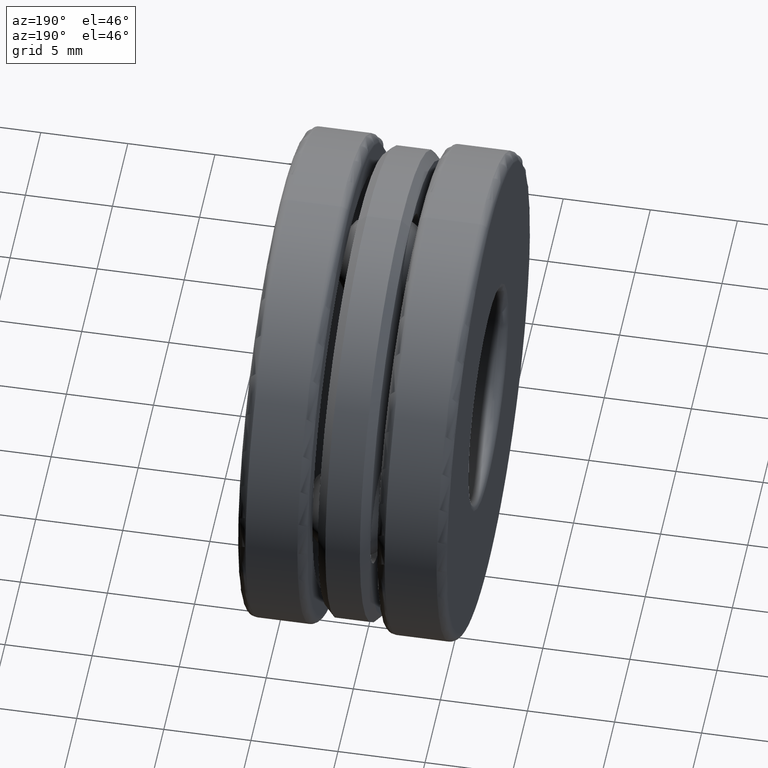
[diagram: clean part render]
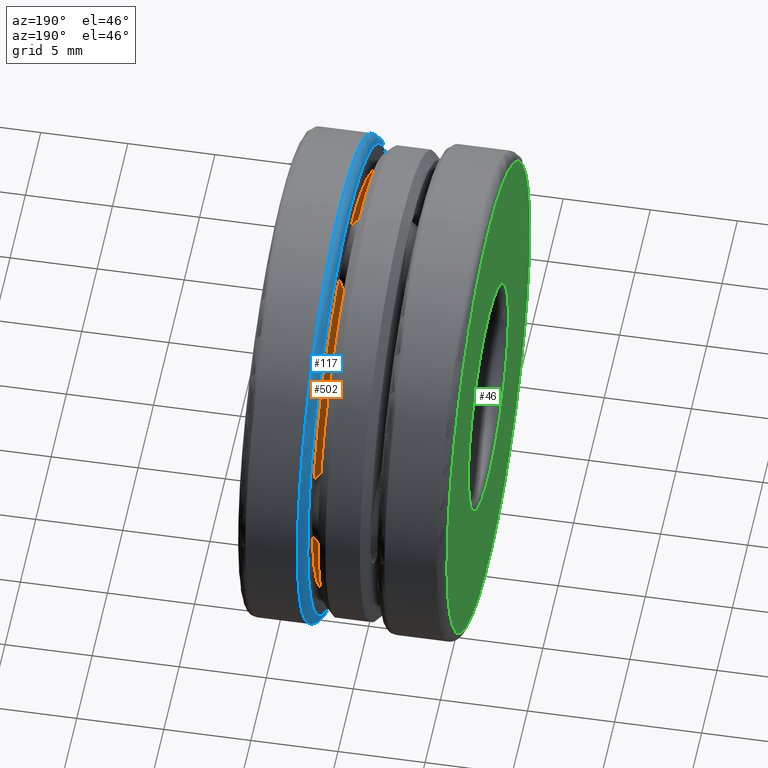
[diagram: same view with three faces highlighted in distinct colors, each labeled with its STEP entity id]
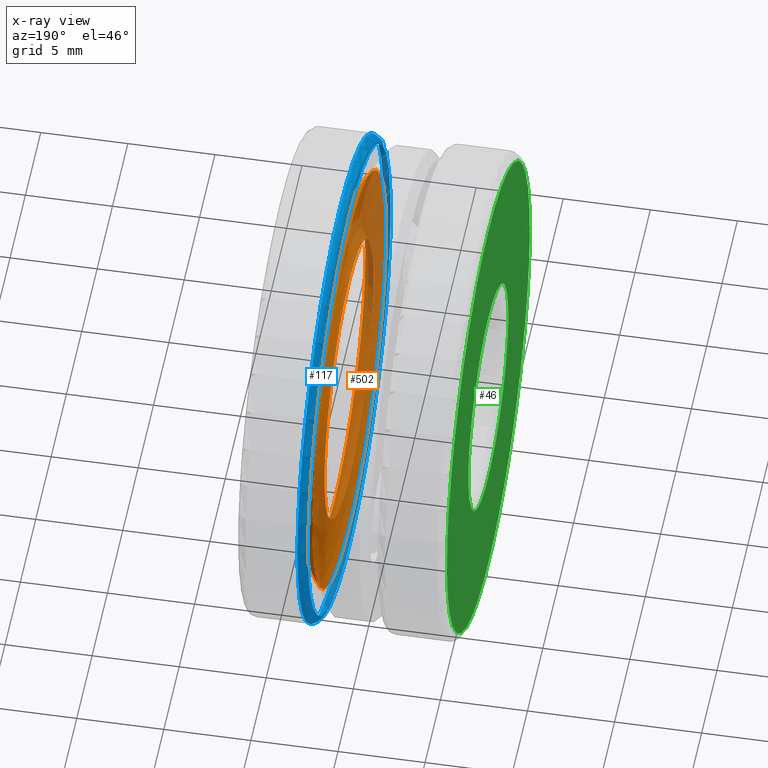
[diagram: x-ray of the same camera — body ghosted, the three highlighted faces saturated]
A machine part, auxiliary view with three faces highlighted in distinct colors.
The next image is the same camera in x-ray (body ghosted, the three faces saturated) — at least one of them is partly hidden behind the body in this view.
Their STEP definitions:

[orange] entity #502 — the highlighted toroidal blend (fillet) surface has major radius 9.9977 mm and minor (blend) radius 2.8067 mm.
#80 = AXIS2_PLACEMENT_3D ( 'NONE', #89, #794, #224 ) ;
#89 = CARTESIAN_POINT ( 'NONE',  ( 0.07866824000000058300, 0.0000000000000000000, 0.0000000000000000000 ) ) ;
#131 = TOROIDAL_SURFACE ( 'NONE', #632, 0.3936102362204725300, 0.1105000000000000000 ) ;
#193 = FACE_OUTER_BOUND ( 'NONE', #715, .T. ) ;
#224 = DIRECTION ( 'NONE',  ( 0.0000000000000000000, 0.0000000000000000000, 1.000000000000000000 ) ) ;
#256 = DIRECTION ( 'NONE',  ( -1.000000000000000000, -0.0000000000000000000, -0.0000000000000000000 ) ) ;
#281 = AXIS2_PLACEMENT_3D ( 'NONE', #322, #256, #332 ) ;
#322 = CARTESIAN_POINT ( 'NONE',  ( 0.07866824000000058300, 0.0000000000000000000, 0.0000000000000000000 ) ) ;
#327 = EDGE_CURVE ( 'NONE', #515, #515, #501, .T. ) ;
#332 = DIRECTION ( 'NONE',  ( 0.0000000000000000000, 0.0000000000000000000, 1.000000000000000000 ) ) ;
#383 = CARTESIAN_POINT ( 'NONE',  ( 0.07866824000000058300, 0.0000000000000000000, 0.4712089347617645100 ) ) ;
#386 = ORIENTED_EDGE ( 'NONE', *, *, #327, .F. ) ;
#403 = CARTESIAN_POINT ( 'NONE',  ( 2.410167579495174300E-017, 0.0000000000000000000, 0.0000000000000000000 ) ) ;
#441 = CARTESIAN_POINT ( 'NONE',  ( 0.07866824000000058300, 0.0000000000000000000, 0.3160115376791805000 ) ) ;
#501 = CIRCLE ( 'NONE', #281, 0.3160115376791805000 ) ;
#502 = ADVANCED_FACE ( 'NONE', ( #640, #193 ), #131, .F. ) ;
#515 = VERTEX_POINT ( 'NONE', #441 ) ;
#535 = VERTEX_POINT ( 'NONE', #383 ) ;
#549 = EDGE_CURVE ( 'NONE', #535, #535, #783, .T. ) ;
#587 = DIRECTION ( 'NONE',  ( -1.000000000000000000, -0.0000000000000000000, -0.0000000000000000000 ) ) ;
#632 = AXIS2_PLACEMENT_3D ( 'NONE', #403, #587, #713 ) ;
#640 = FACE_OUTER_BOUND ( 'NONE', #780, .T. ) ;
#713 = DIRECTION ( 'NONE',  ( 0.0000000000000000000, 0.0000000000000000000, 1.000000000000000000 ) ) ;
#715 = EDGE_LOOP ( 'NONE', ( #386 ) ) ;
#780 = EDGE_LOOP ( 'NONE', ( #793 ) ) ;
#783 = CIRCLE ( 'NONE', #80, 0.4712089347617645100 ) ;
#793 = ORIENTED_EDGE ( 'NONE', *, *, #549, .T. ) ;
#794 = DIRECTION ( 'NONE',  ( -1.000000000000000000, -0.0000000000000000000, -0.0000000000000000000 ) ) ;

[blue] entity #117 — the highlighted toroidal blend (fillet) surface has major radius 13.4874 mm and minor (blend) radius 0.508 mm.
#17 = AXIS2_PLACEMENT_3D ( 'NONE', #290, #596, #360 ) ;
#50 = CARTESIAN_POINT ( 'NONE',  ( 0.09866824000000055900, 0.0000000000000000000, 0.0000000000000000000 ) ) ;
#58 = CIRCLE ( 'NONE', #17, 0.5509999999999999300 ) ;
#78 = CIRCLE ( 'NONE', #759, 0.5310000000000000300 ) ;
#106 = DIRECTION ( 'NONE',  ( 0.0000000000000000000, 0.0000000000000000000, 1.000000000000000000 ) ) ;
#107 = CARTESIAN_POINT ( 'NONE',  ( 0.09866824000000055900, 0.0000000000000000000, 0.5509999999999999300 ) ) ;
#117 = ADVANCED_FACE ( 'NONE', ( #156, #452 ), #317, .T. ) ;
#132 = VERTEX_POINT ( 'NONE', #434 ) ;
#156 = FACE_OUTER_BOUND ( 'NONE', #688, .T. ) ;
#217 = AXIS2_PLACEMENT_3D ( 'NONE', #50, #249, #106 ) ;
#249 = DIRECTION ( 'NONE',  ( -1.000000000000000000, -0.0000000000000000000, -0.0000000000000000000 ) ) ;
#290 = CARTESIAN_POINT ( 'NONE',  ( 0.09866824000000055900, 0.0000000000000000000, 0.0000000000000000000 ) ) ;
#317 = TOROIDAL_SURFACE ( 'NONE', #217, 0.5310000000000000300, 0.01999999999999994100 ) ;
#325 = ORIENTED_EDGE ( 'NONE', *, *, #636, .F. ) ;
#360 = DIRECTION ( 'NONE',  ( 0.0000000000000000000, 0.0000000000000000000, 1.000000000000000000 ) ) ;
#434 = CARTESIAN_POINT ( 'NONE',  ( 0.07866824000000059700, 0.0000000000000000000, 0.5310000000000000300 ) ) ;
#452 = FACE_OUTER_BOUND ( 'NONE', #672, .T. ) ;
#467 = ORIENTED_EDGE ( 'NONE', *, *, #537, .T. ) ;
#537 = EDGE_CURVE ( 'NONE', #593, #593, #58, .T. ) ;
#593 = VERTEX_POINT ( 'NONE', #107 ) ;
#596 = DIRECTION ( 'NONE',  ( -1.000000000000000000, -0.0000000000000000000, -0.0000000000000000000 ) ) ;
#636 = EDGE_CURVE ( 'NONE', #132, #132, #78, .T. ) ;
#672 = EDGE_LOOP ( 'NONE', ( #467 ) ) ;
#688 = EDGE_LOOP ( 'NONE', ( #325 ) ) ;
#739 = CARTESIAN_POINT ( 'NONE',  ( 0.07866824000000059700, 0.0000000000000000000, 0.0000000000000000000 ) ) ;
#759 = AXIS2_PLACEMENT_3D ( 'NONE', #739, #809, #807 ) ;
#807 = DIRECTION ( 'NONE',  ( 0.0000000000000000000, 0.0000000000000000000, 1.000000000000000000 ) ) ;
#809 = DIRECTION ( 'NONE',  ( -1.000000000000000000, -0.0000000000000000000, -0.0000000000000000000 ) ) ;

[green] entity #46 — the highlighted planar face has unit normal (1, 0, 0).
#20 = DIRECTION ( 'NONE',  ( -1.000000000000000000, -0.0000000000000000000, -0.0000000000000000000 ) ) ;
#46 = ADVANCED_FACE ( 'NONE', ( #754, #469 ), #730, .F. ) ;
#92 = DIRECTION ( 'NONE',  ( 1.000000000000000000, 0.0000000000000000000, 0.0000000000000000000 ) ) ;
#94 = AXIS2_PLACEMENT_3D ( 'NONE', #795, #92, #547 ) ;
#161 = ORIENTED_EDGE ( 'NONE', *, *, #494, .F. ) ;
#192 = EDGE_LOOP ( 'NONE', ( #654 ) ) ;
#204 = DIRECTION ( 'NONE',  ( -1.000000000000000000, -0.0000000000000000000, -0.0000000000000000000 ) ) ;
#210 = CIRCLE ( 'NONE', #797, 0.2562204724409448700 ) ;
#267 = VERTEX_POINT ( 'NONE', #446 ) ;
#278 = EDGE_LOOP ( 'NONE', ( #161 ) ) ;
#303 = AXIS2_PLACEMENT_3D ( 'NONE', #462, #20, #407 ) ;
#343 = DIRECTION ( 'NONE',  ( 0.0000000000000000000, 0.0000000000000000000, 1.000000000000000000 ) ) ;
#407 = DIRECTION ( 'NONE',  ( 0.0000000000000000000, 0.0000000000000000000, 1.000000000000000000 ) ) ;
#419 = EDGE_CURVE ( 'NONE', #267, #267, #792, .T. ) ;
#446 = CARTESIAN_POINT ( 'NONE',  ( -0.2359999999999999600, 0.0000000000000000000, 0.5310000000000000300 ) ) ;
#462 = CARTESIAN_POINT ( 'NONE',  ( -0.2359999999999999600, 0.0000000000000000000, 0.0000000000000000000 ) ) ;
#469 = FACE_OUTER_BOUND ( 'NONE', #192, .T. ) ;
#494 = EDGE_CURVE ( 'NONE', #704, #704, #210, .T. ) ;
#528 = CARTESIAN_POINT ( 'NONE',  ( -0.2359999999999999600, 0.0000000000000000000, 0.0000000000000000000 ) ) ;
#547 = DIRECTION ( 'NONE',  ( 0.0000000000000000000, 0.0000000000000000000, -1.000000000000000000 ) ) ;
#629 = CARTESIAN_POINT ( 'NONE',  ( -0.2359999999999999600, 0.0000000000000000000, 0.2562204724409448700 ) ) ;
#654 = ORIENTED_EDGE ( 'NONE', *, *, #419, .T. ) ;
#704 = VERTEX_POINT ( 'NONE', #629 ) ;
#730 = PLANE ( 'NONE',  #94 ) ;
#754 = FACE_BOUND ( 'NONE', #278, .T. ) ;
#792 = CIRCLE ( 'NONE', #303, 0.5310000000000000300 ) ;
#795 = CARTESIAN_POINT ( 'NONE',  ( -0.2359999999999999600, 0.0000000000000000000, 0.0000000000000000000 ) ) ;
#797 = AXIS2_PLACEMENT_3D ( 'NONE', #528, #204, #343 ) ;